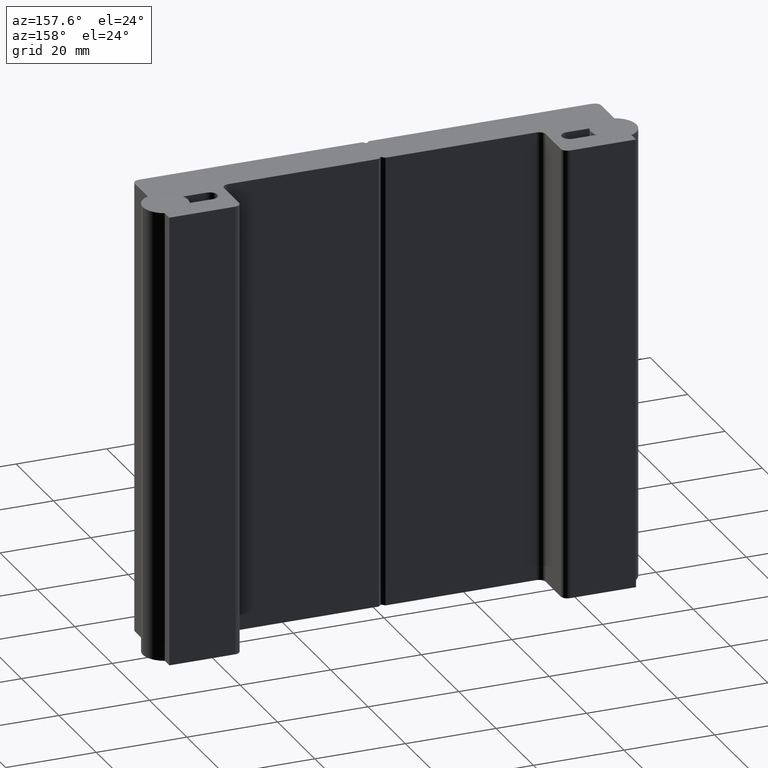
[diagram: clean part render]
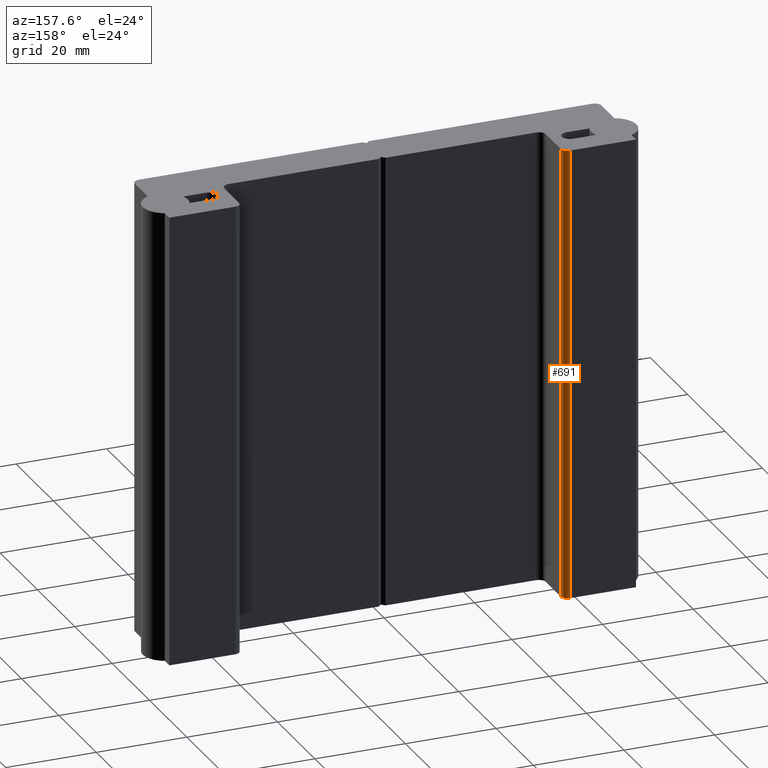
[diagram: same view with one face highlighted and labeled with its STEP entity id]
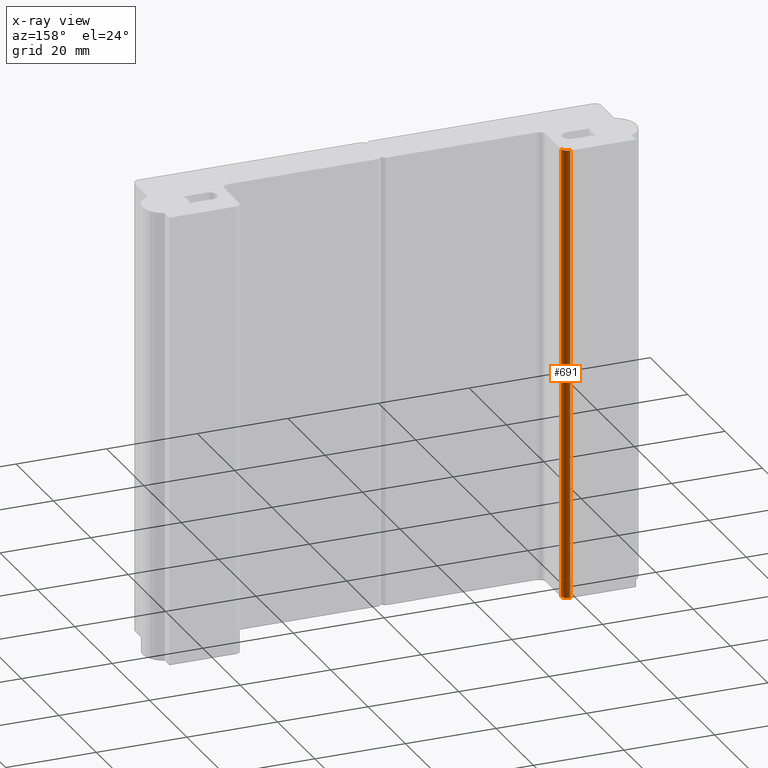
[diagram: x-ray of the same camera — body ghosted, the highlighted face saturated]
A machine part, auxiliary view. The second image highlights one B-rep face of the part: STEP entity #691.
The next image is the same camera in x-ray: the body ghosted, the highlighted face saturated — about 0% of this face is hidden behind the body in this view.
In plain terms, the highlighted cylindrical surface (edge-blend (fillet) strip) has radius 1.5 mm, axis along (0, 0, -1).
Its self-contained STEP definition (entity closure, byte-faithful):
#69=FACE_OUTER_BOUND('',#106,.T.);
#106=EDGE_LOOP('',(#544,#545,#546,#547));
#166=LINE('',#1162,#239);
#167=LINE('',#1165,#240);
#239=VECTOR('',#942,10.);
#240=VECTOR('',#945,10.);
#289=CIRCLE('',#791,1.5);
#295=CIRCLE('',#798,1.5);
#328=VERTEX_POINT('',#1120);
#329=VERTEX_POINT('',#1122);
#347=VERTEX_POINT('',#1161);
#348=VERTEX_POINT('',#1163);
#404=EDGE_CURVE('',#329,#328,#289,.T.);
#424=EDGE_CURVE('',#328,#347,#166,.T.);
#425=EDGE_CURVE('',#347,#348,#295,.T.);
#426=EDGE_CURVE('',#348,#329,#167,.T.);
#544=ORIENTED_EDGE('',*,*,#404,.T.);
#545=ORIENTED_EDGE('',*,*,#424,.T.);
#546=ORIENTED_EDGE('',*,*,#425,.T.);
#547=ORIENTED_EDGE('',*,*,#426,.T.);
#671=CYLINDRICAL_SURFACE('',#797,1.5);
#691=ADVANCED_FACE('',(#69),#671,.T.);
#791=AXIS2_PLACEMENT_3D('',#1123,#914,#915);
#797=AXIS2_PLACEMENT_3D('',#1160,#940,#941);
#798=AXIS2_PLACEMENT_3D('',#1164,#943,#944);
#914=DIRECTION('center_axis',(0.,0.,1.));
#915=DIRECTION('ref_axis',(0.707106781186549,0.707106781186546,0.));
#940=DIRECTION('center_axis',(0.,0.,-1.));
#941=DIRECTION('ref_axis',(0.707106781186549,0.707106781186546,0.));
#942=DIRECTION('',(0.,0.,1.));
#943=DIRECTION('center_axis',(0.,0.,-1.));
#944=DIRECTION('ref_axis',(0.707106781186549,0.707106781186546,0.));
#945=DIRECTION('',(0.,0.,-1.));
#1120=CARTESIAN_POINT('',(-37.,10.,0.));
#1122=CARTESIAN_POINT('',(-35.5,8.5,0.));
#1123=CARTESIAN_POINT('Origin',(-37.,8.5,0.));
#1160=CARTESIAN_POINT('Origin',(-37.,8.5,50.));
#1161=CARTESIAN_POINT('',(-37.,10.,100.));
#1162=CARTESIAN_POINT('',(-37.,10.,50.));
#1163=CARTESIAN_POINT('',(-35.5,8.5,100.));
#1164=CARTESIAN_POINT('Origin',(-37.,8.5,100.));
#1165=CARTESIAN_POINT('',(-35.5,8.5,50.));